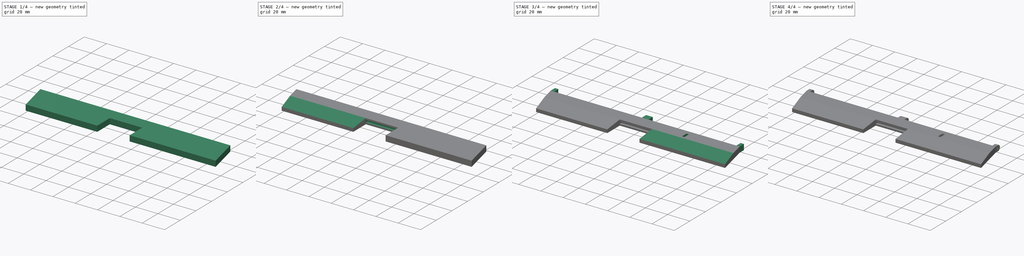
[diagram: build sequence overview — one tinted view per stage of 4, left to right]
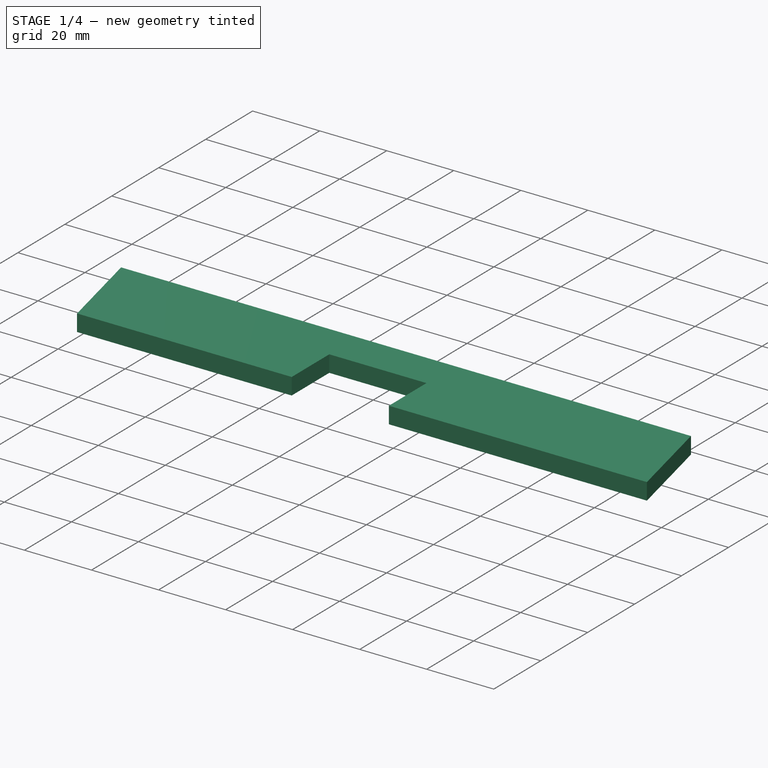
[diagram: stage 1 of 4 — iso view after this stage's code; geometry added in this stage tinted green]
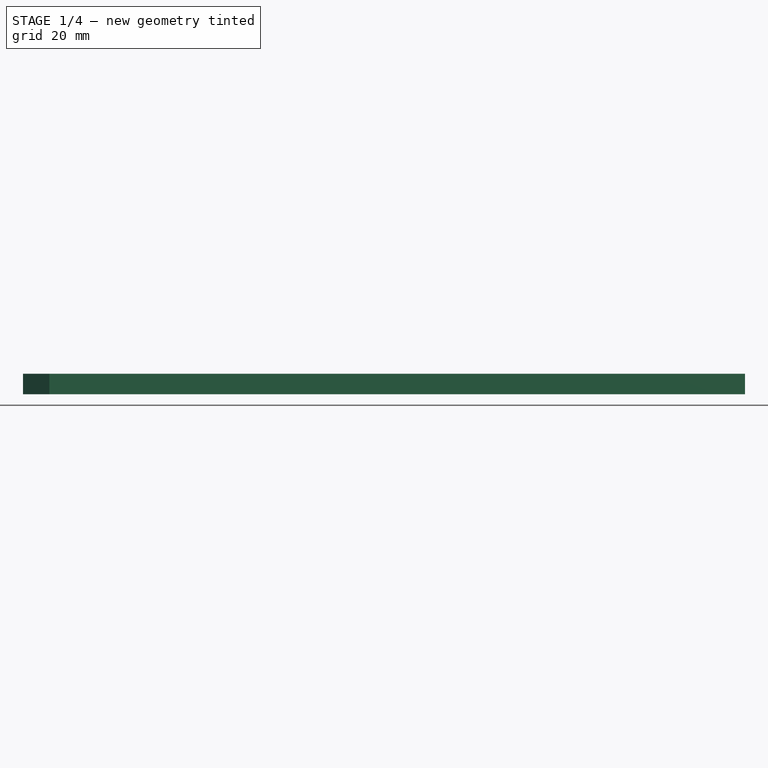
[diagram: stage 1 of 4 — front view after this stage's code; geometry added in this stage tinted green]
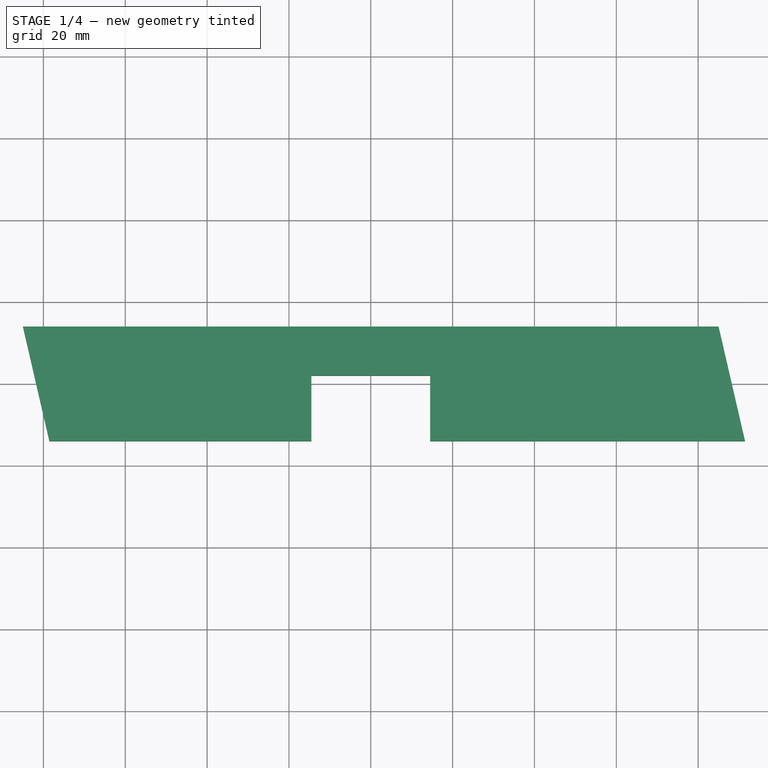
[diagram: stage 1 of 4 — top view after this stage's code; geometry added in this stage tinted green]
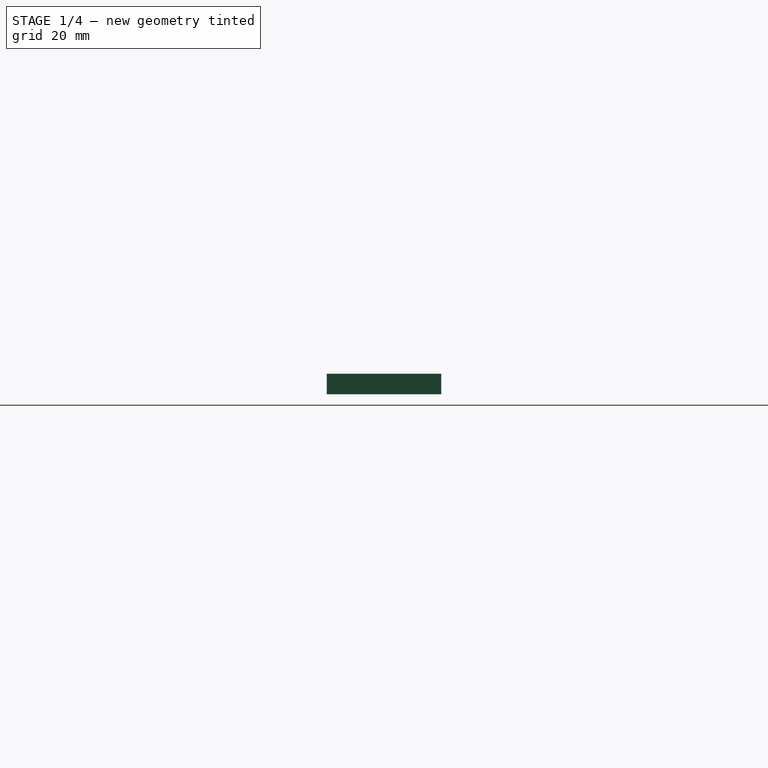
[diagram: stage 1 of 4 — right view after this stage's code; geometry added in this stage tinted green]
FCSTD DOCUMENT  (FreeCAD 0.19R)
Label: aileron_left_part
License: All rights reserved
LicenseURL: http://en.wikipedia.org/wiki/All_rights_reserved
objects: Sketcher::SketchObject×8, PartDesign::Pocket×6, PartDesign::CoordinateSystem×3, App::DocumentObjectGroup×2, PartDesign::Pad×2, App::FeaturePython×1, PartDesign::Fillet×1, PartDesign::Body×1, App::Part×1
note: 30 computed .brp shape members not serialized (recipe doc carries the construction recipe); baked Part::Feature solids carry a one-line shape summary decoded from their .brp

FEATURE [App::DocumentObjectGroup] Parts
FEATURE [PartDesign::CoordinateSystem] LCS_Origin
  AttacherType = Attacher::AttachEngine3D
  MapMode = 2
  Support = -> [X_Axis]
FEATURE [App::DocumentObjectGroup] Constraints
FEATURE [App::FeaturePython] Variables  # WARN: FeaturePython — macro-defined, semantics opaque (R4)
FEATURE [PartDesign::CoordinateSystem] LCS_0
  AttacherType = Attacher::AttachEngine3D
  MapMode = 2
  Support = -> [X_Axis001]
FEATURE [Sketcher::SketchObject] Sketch
  FullyConstrained = false
  MapMode = 5
  Support = -> [XY_Plane001]
  sketch-geometry (5):
    g0: LineSegment StartX=-85 StartY=14 StartZ=0 EndX=85 EndY=14 EndZ=0
    g1: LineSegment StartX=85 StartY=14 StartZ=0 EndX=91.4643 EndY=-14 EndZ=0
    g2: LineSegment StartX=91.4643 StartY=-14 StartZ=0 EndX=-78.5357 EndY=-14 EndZ=0
    g3: LineSegment StartX=-78.5357 StartY=-14 StartZ=0 EndX=-85 EndY=14 EndZ=0
    g4: LineSegment StartX=-45.9438 StartY=14 StartZ=0 EndX=-45.9438 EndY=-14 EndZ=0
  constraints (13):
    c: Coincident(g0,g1)
    c: Coincident(g1,g2)
    c: Coincident(g2,g3)
    c: Coincident(g3,g0)
    c: Horizontal(g2)
    c: DistanceX(g0,g0) = 170
    c: Angle(g3,g0) = 1.3439
    c: Angle(g1,g2) = 1.3439
    c: PointOnObject(g4,g0)
    c: PointOnObject(g4,g2)
    c: DistanceY(g4,g4) = 28
    c: Symmetric(g4,g4,g-1)
    c: Symmetric(g0,g0,g-2)
FEATURE [PartDesign::Pad] Pad
  Direction = (1,1,1)
  Length = 5
  Length2 = 100
  Profile = -> Sketch
  Type = 0
FEATURE [Sketcher::SketchObject] Sketch001
  FullyConstrained = true
  MapMode = 5
  Placement = pos=(0,0,5) rot=(0,0,1;0rad)
  Support = -> [Pad]
  sketch-geometry (4):
    g0: LineSegment StartX=-14.5 StartY=2 StartZ=0 EndX=14.5 EndY=2 EndZ=0
    g1: LineSegment StartX=14.5 StartY=2 StartZ=0 EndX=14.5 EndY=-14 EndZ=0
    g2: LineSegment StartX=14.5 StartY=-14 StartZ=0 EndX=-14.5 EndY=-14 EndZ=0
    g3: LineSegment StartX=-14.5 StartY=-14 StartZ=0 EndX=-14.5 EndY=2 EndZ=0
  constraints (11):
    c: Coincident(g0,g1)
    c: Coincident(g1,g2)
    c: Coincident(g2,g3)
    c: Coincident(g3,g0)
    c: Horizontal(g2)
    c: Vertical(g1)
    c: Vertical(g3)
    c: DistanceY(g1,g1) = 16
    c: DistanceX(g2,g2) = 29
    c: DistanceY(g-1,g0) = 2
    c: Symmetric(g0,g0,g-2)
FEATURE [PartDesign::Pocket] Pocket
  BaseFeature = -> Pad
  Length = 5
  Length2 = 100
  Profile = -> Sketch001
  Type = 0
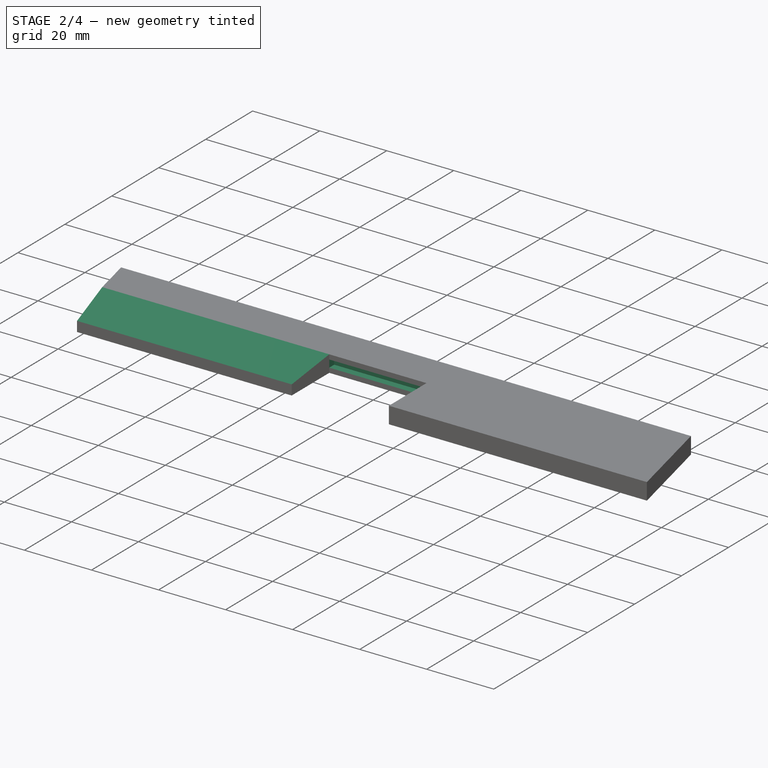
[diagram: stage 2 of 4 — iso view after this stage's code; geometry added in this stage tinted green]
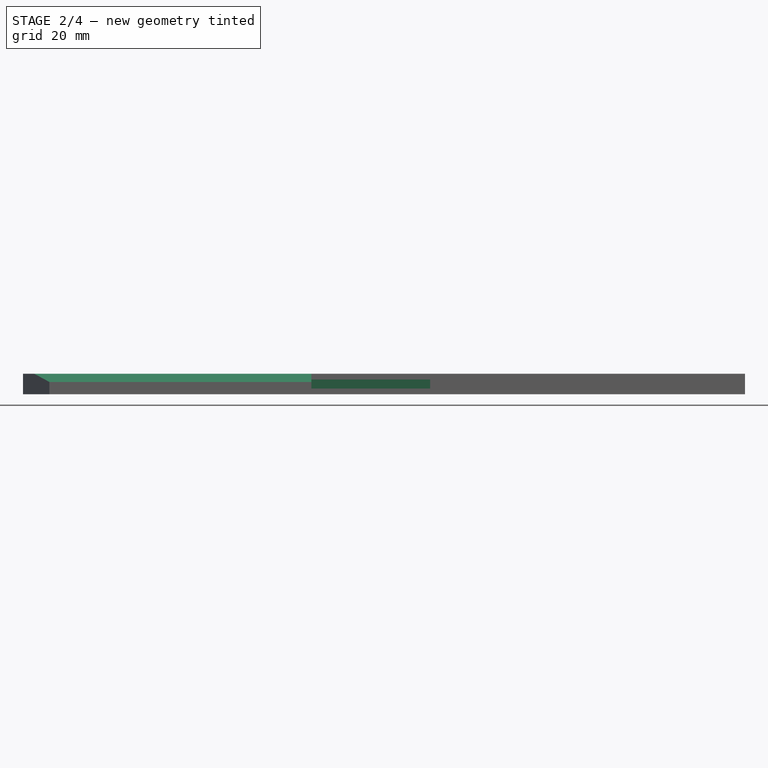
[diagram: stage 2 of 4 — front view after this stage's code; geometry added in this stage tinted green]
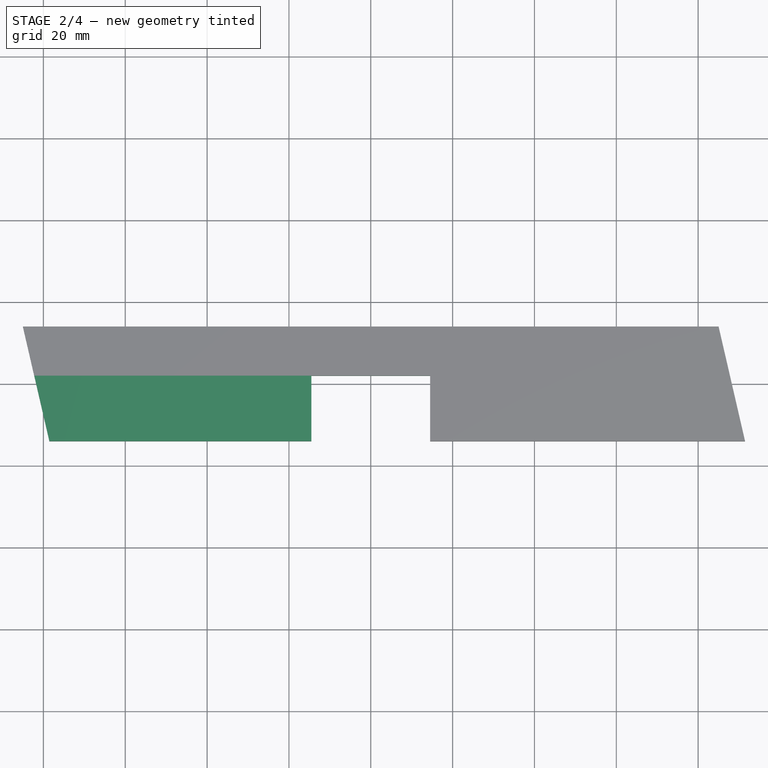
[diagram: stage 2 of 4 — top view after this stage's code; geometry added in this stage tinted green]
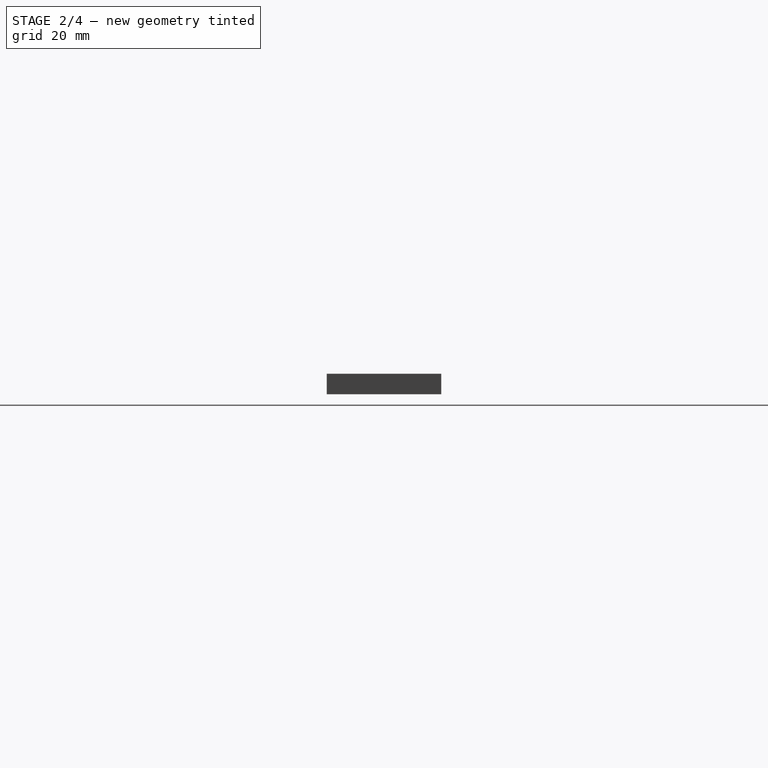
[diagram: stage 2 of 4 — right view after this stage's code; geometry added in this stage tinted green]
FEATURE [Sketcher::SketchObject] Sketch002
  FullyConstrained = true
  MapMode = 5
  Placement = pos=(0,2,0) rot=(1,0,0;1.5708rad)
  Support = -> [Pocket]
  sketch-geometry (4):
    g0: LineSegment StartX=-14.5 StartY=3.6 StartZ=0 EndX=14.5 EndY=3.6 EndZ=0
    g1: LineSegment StartX=14.5 StartY=3.6 StartZ=0 EndX=14.5 EndY=1.4 EndZ=0
    g2: LineSegment StartX=14.5 StartY=1.4 StartZ=0 EndX=-14.5 EndY=1.4 EndZ=0
    g3: LineSegment StartX=-14.5 StartY=1.4 StartZ=0 EndX=-14.5 EndY=3.6 EndZ=0
  constraints (11):
    c: Coincident(g0,g1)
    c: Coincident(g1,g2)
    c: Coincident(g2,g3)
    c: Coincident(g3,g0)
    c: Horizontal(g2)
    c: Vertical(g1)
    c: Vertical(g3)
    c: DistanceX(g0,g0) = 29
    c: DistanceY(g1,g1) = 2.2
    c: Symmetric(g0,g0,g-2)
    c: DistanceY(g-1,g1) = 1.4
FEATURE [PartDesign::Pocket] Pocket001
  BaseFeature = -> Pocket
  Length = 2.1
  Length2 = 100
  Profile = -> Sketch002
  Type = 0
FEATURE [Sketcher::SketchObject] Sketch004
  FullyConstrained = false
  MapMode = 5
  Placement = pos=(-14.5,0,0) rot=(0.57735,0.57735,0.57735;2.0944rad)
  Support = -> [Pocket001]
  sketch-geometry (3):
    g0: LineSegment StartX=-14 StartY=5 StartZ=0 EndX=2 EndY=5 EndZ=0
    g1: LineSegment StartX=2 StartY=5 StartZ=0 EndX=-14 EndY=3 EndZ=0
    g2: LineSegment StartX=-14 StartY=3 StartZ=0 EndX=-14 EndY=5 EndZ=0
  constraints (7):
    c: Coincident(g1,g2)
    c: Horizontal(g0)
    c: Vertical(g2)
    c: DistanceX(g0,g0) = 16
    c: DistanceY(g2,g2) = 2
    c: DistanceX(g-2,g1) = -14
    c: DistanceY(g-1,g0) = 5
FEATURE [PartDesign::Pocket] Pocket002
  BaseFeature = -> Pocket001
  Length = 100
  Length2 = 100
  Profile = -> Sketch004
  Type = 0
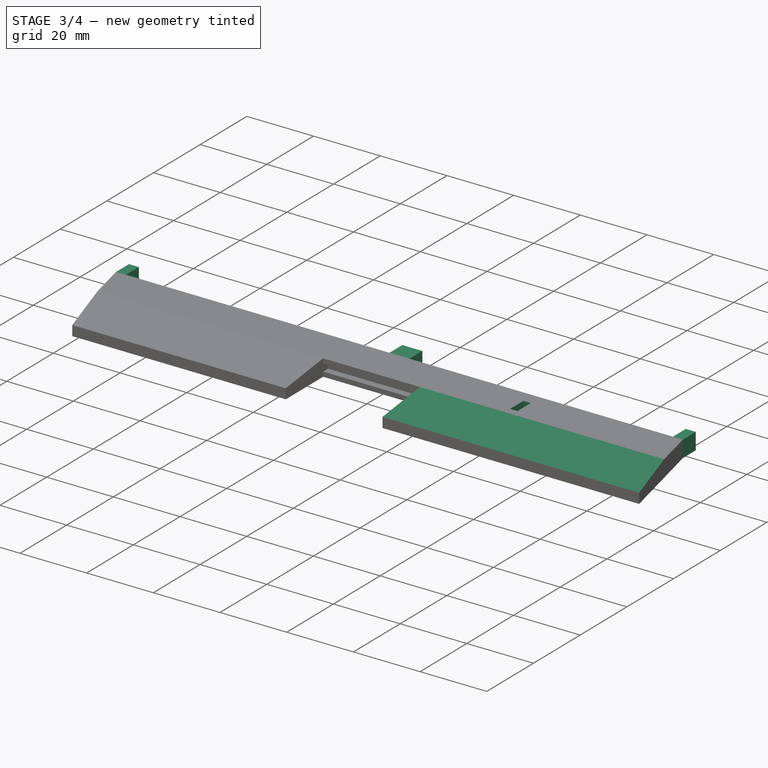
[diagram: stage 3 of 4 — iso view after this stage's code; geometry added in this stage tinted green]
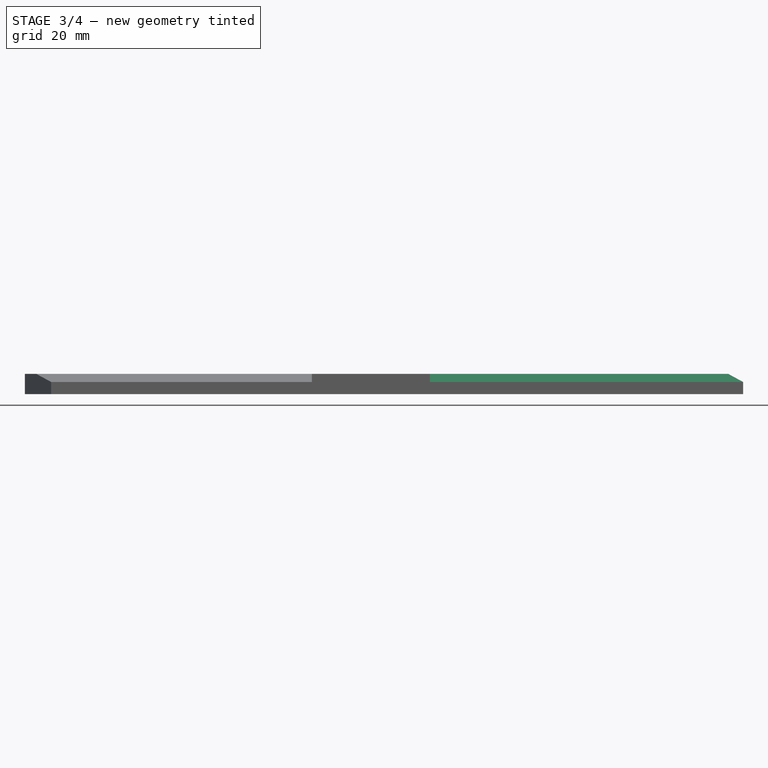
[diagram: stage 3 of 4 — front view after this stage's code; geometry added in this stage tinted green]
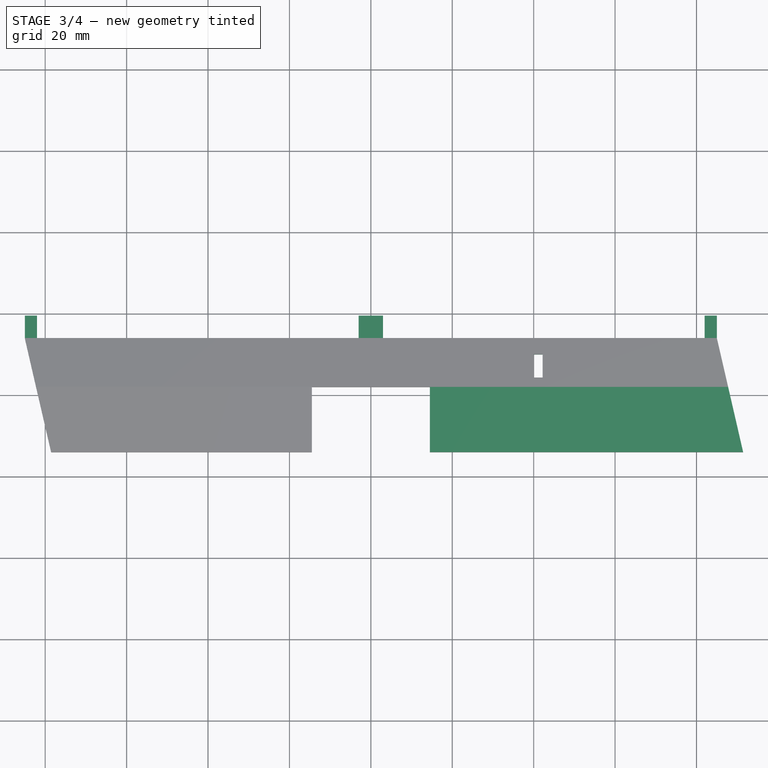
[diagram: stage 3 of 4 — top view after this stage's code; geometry added in this stage tinted green]
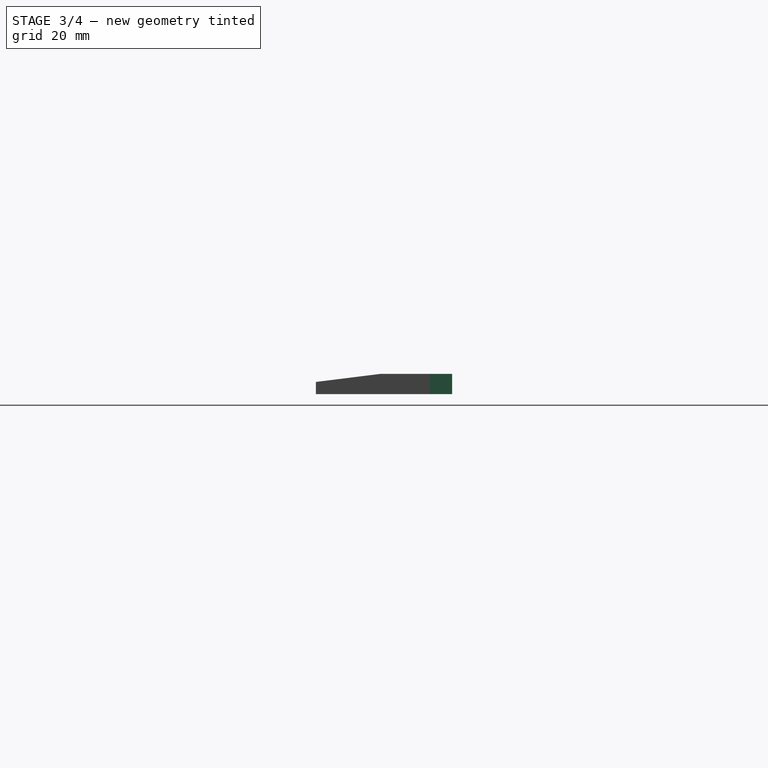
[diagram: stage 3 of 4 — right view after this stage's code; geometry added in this stage tinted green]
FEATURE [Sketcher::SketchObject] Sketch005
  FullyConstrained = true
  MapMode = 5
  Placement = pos=(14.5,0,0) rot=(0.57735,-0.57735,-0.57735;2.0944rad)
  Support = -> [Pocket002]
  sketch-geometry (3):
    g0: LineSegment StartX=-2 StartY=5 StartZ=0 EndX=14 EndY=5 EndZ=0
    g1: LineSegment StartX=14 StartY=5 StartZ=0 EndX=14 EndY=3 EndZ=0
    g2: LineSegment StartX=14 StartY=3 StartZ=0 EndX=-2 EndY=5 EndZ=0
  constraints (9):
    c: Coincident(g0,g1)
    c: Coincident(g1,g2)
    c: Horizontal(g0)
    c: Vertical(g1)
    c: Coincident(g2,g0)
    c: DistanceX(g0,g0) = 16
    c: DistanceY(g1,g1) = 2
    c: DistanceX(g-2,g0) = 14
    c: DistanceY(g-1,g0) = 5
FEATURE [PartDesign::Pocket] Pocket003
  BaseFeature = -> Pocket002
  Length = 100
  Length2 = 100
  Profile = -> Sketch005
  Type = 0
FEATURE [Sketcher::SketchObject] Sketch006
  FullyConstrained = true
  MapMode = 5
  Placement = pos=(-1e-16,14,0) rot=(0,0.707107,0.707107;3.14159rad)
  Support = -> [Pocket003]
  sketch-geometry (12):
    g0: LineSegment StartX=82 StartY=5 StartZ=0 EndX=85 EndY=5 EndZ=0
    g1: LineSegment StartX=85 StartY=5 StartZ=0 EndX=85 EndY=0 EndZ=0
    g2: LineSegment StartX=85 StartY=0 StartZ=0 EndX=82 EndY=0 EndZ=0
    g3: LineSegment StartX=82 StartY=0 StartZ=0 EndX=82 EndY=5 EndZ=0
    g4: LineSegment StartX=-85 StartY=5 StartZ=0 EndX=-82 EndY=5 EndZ=0
    g5: LineSegment StartX=-82 StartY=5 StartZ=0 EndX=-82 EndY=0 EndZ=0
    g6: LineSegment StartX=-82 StartY=0 StartZ=0 EndX=-85 EndY=0 EndZ=0
    g7: LineSegment StartX=-85 StartY=0 StartZ=0 EndX=-85 EndY=5 EndZ=0
    g8: LineSegment StartX=-3 StartY=5 StartZ=0 EndX=3 EndY=5 EndZ=0
    g9: LineSegment StartX=3 StartY=5 StartZ=0 EndX=3 EndY=0 EndZ=0
    g10: LineSegment StartX=3 StartY=0 StartZ=0 EndX=-3 EndY=0 EndZ=0
    g11: LineSegment StartX=-3 StartY=0 StartZ=0 EndX=-3 EndY=5 EndZ=0
  constraints (35):
    c: Coincident(g0,g1)
    c: Coincident(g1,g2)
    c: Coincident(g2,g3)
    c: Coincident(g3,g0)
    c: Horizontal(g0)
    c: Horizontal(g2)
    c: Vertical(g1)
    c: Vertical(g3)
    c: DistanceY(g1,g1) = 5
    c: DistanceX(g2,g2) = 3
    c: PointOnObject(g1,g-1)
    c: DistanceX(g-1,g0) = 85
    c: Coincident(g4,g5)
    c: Coincident(g5,g6)
    c: Coincident(g6,g7)
    c: Coincident(g7,g4)
    c: Horizontal(g4)
    c: Horizontal(g6)
    c: Vertical(g5)
    c: Vertical(g7)
    c: DistanceX(g4,g4) = 3
    c: DistanceY(g5,g5) = 5
    c: PointOnObject(g6,g-1)
    c: DistanceX(g-2,g4) = -85
    c: Coincident(g8,g9)
    c: Coincident(g9,g10)
    c: Coincident(g10,g11)
    c: Coincident(g11,g8)
    c: Horizontal(g10)
    c: Vertical(g9)
    c: Vertical(g11)
    c: DistanceY(g9,g9) = 5
    c: DistanceX(g10,g10) = 6
    c: PointOnObject(g9,g-1)
    c: Symmetric(g8,g8,g-2)
FEATURE [PartDesign::Pad] Pad001
  BaseFeature = -> Pocket003
  Direction = (1,1,1)
  Length = 5.5
  Length2 = 100
  Profile = -> Sketch006
  Type = 0
FEATURE [Sketcher::SketchObject] Sketch008
  FullyConstrained = true
  MapMode = 5
  Placement = pos=(0,0,5) rot=(0,0,1;0rad)
  Support = -> [Pocket001]
  sketch-geometry (4):
    g0: LineSegment StartX=40 StartY=10 StartZ=0 EndX=42.2 EndY=10 EndZ=0
    g1: LineSegment StartX=42.2 StartY=10 StartZ=0 EndX=42.2 EndY=4.3 EndZ=0
    g2: LineSegment StartX=42.2 StartY=4.3 StartZ=0 EndX=40 EndY=4.3 EndZ=0
    g3: LineSegment StartX=40 StartY=4.3 StartZ=0 EndX=40 EndY=10 EndZ=0
  constraints (12):
    c: Coincident(g0,g1)
    c: Coincident(g1,g2)
    c: Coincident(g2,g3)
    c: Coincident(g3,g0)
    c: Horizontal(g0)
    c: Horizontal(g2)
    c: Vertical(g1)
    c: Vertical(g3)
    c: DistanceY(g3,g3) = 5.7
    c: DistanceX(g2,g2) = 2.2
    c: DistanceX(g-2,g2) = 40
    c: DistanceY(g-1,g0) = 10
FEATURE [PartDesign::Pocket] Pocket005
  BaseFeature = -> Pad001
  Length = 5
  Length2 = 100
  Profile = -> Sketch008
  Type = 0
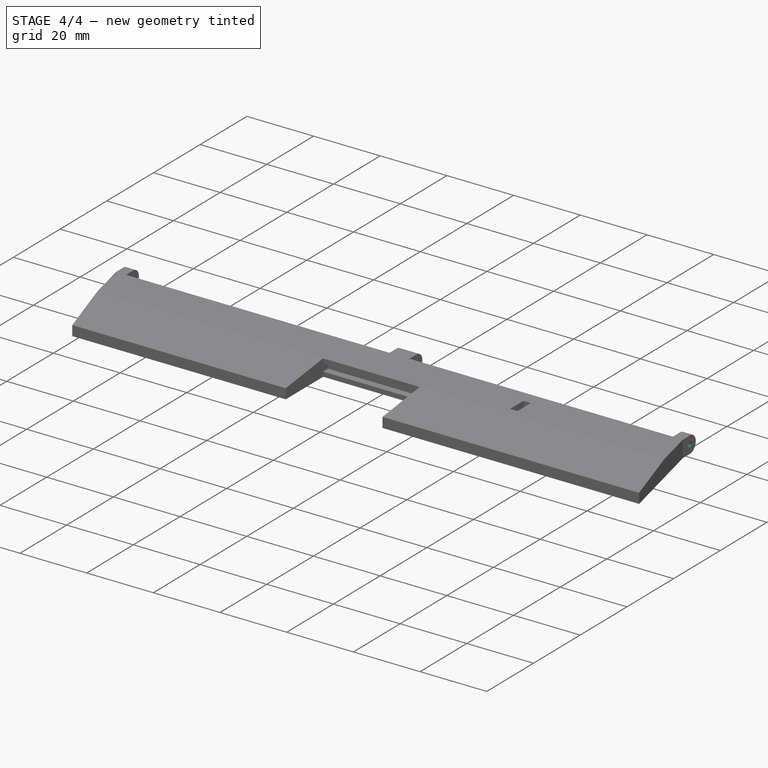
[diagram: stage 4 of 4 — iso view after this stage's code; geometry added in this stage tinted green]
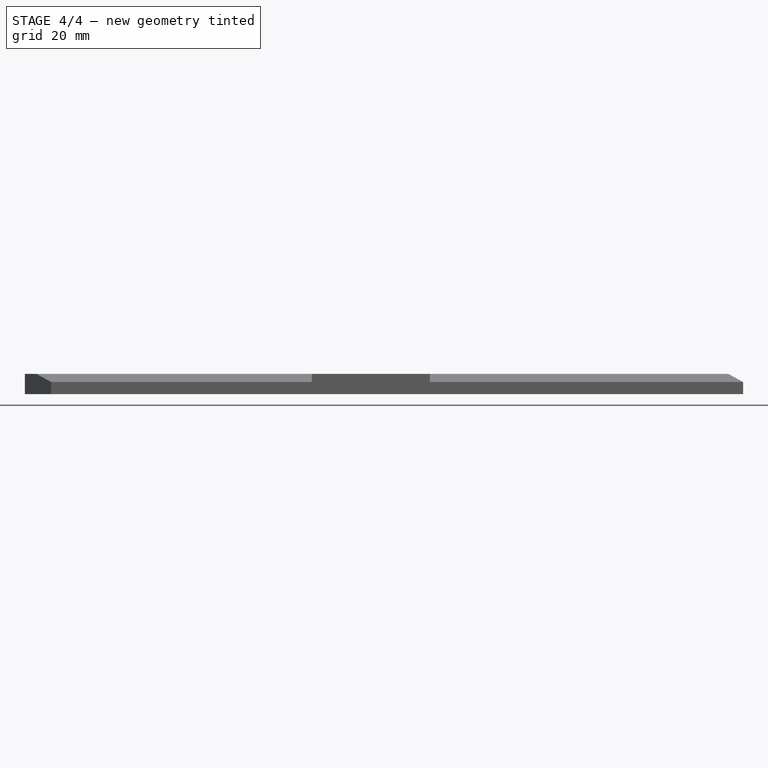
[diagram: stage 4 of 4 — front view after this stage's code; geometry added in this stage tinted green]
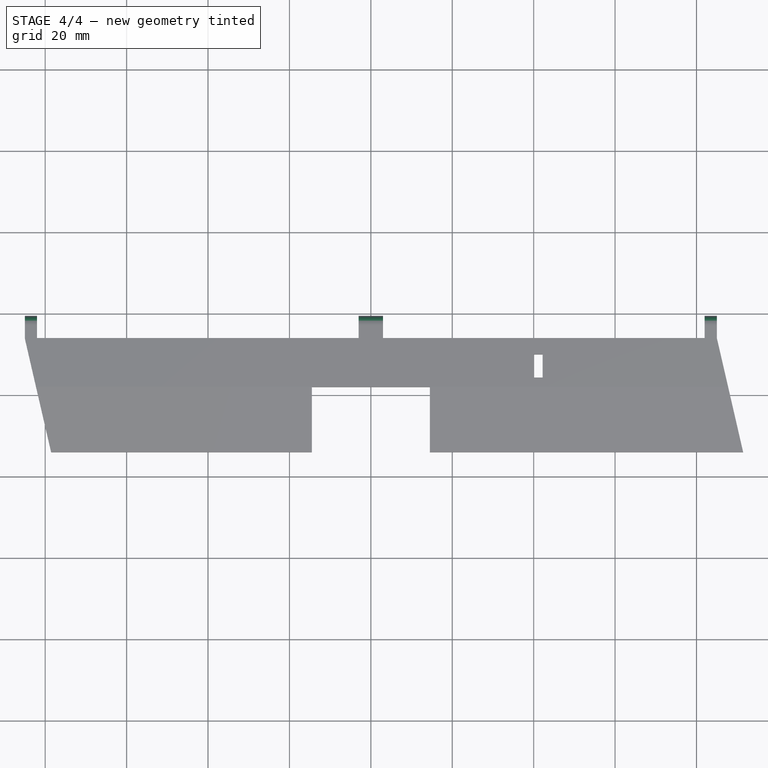
[diagram: stage 4 of 4 — top view after this stage's code; geometry added in this stage tinted green]
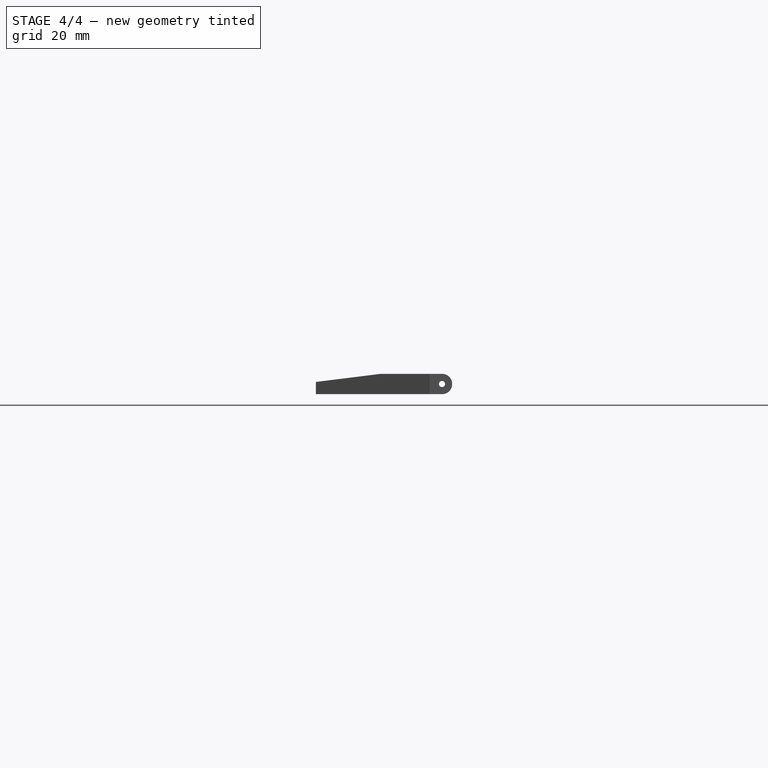
[diagram: stage 4 of 4 — right view after this stage's code; geometry added in this stage tinted green]
FEATURE [PartDesign::CoordinateSystem] LCS_1
  AttacherType = Attacher::AttachEngine3D
  MapMode = 7
  Placement = pos=(-14.5,4.1,1.4) rot=(0,1,0;3.14159rad)
  Support = -> [Pocket001]
FEATURE [Sketcher::SketchObject] Sketch009
  FullyConstrained = false
  MapMode = 5
  Placement = pos=(85,9e-16,0) rot=(0.57735,0.57735,0.57735;2.0944rad)
  Support = -> [Pocket005]
  sketch-geometry (3):
    g0: LineSegment StartX=17 StartY=13.0753 StartZ=0 EndX=17 EndY=-10.1705 EndZ=0
    g1: LineSegment StartX=-21.6834 StartY=2.5 StartZ=0 EndX=32.6819 EndY=2.5 EndZ=0
    g2: Circle CenterX=17 CenterY=2.5 CenterZ=0 NormalX=0 NormalY=0 NormalZ=1 AngleXU=0 Radius=0.75
  constraints (7):
    c: Vertical(g0)
    c: DistanceX(g-2,g0) = 17
    c: Horizontal(g1)
    c: DistanceY(g-1,g1) = 2.5
    c: PointOnObject(g2,g0)
    c: Diameter(g2) = 1.5
    c: PointOnObject(g2,g1)
FEATURE [PartDesign::Pocket] Pocket006
  BaseFeature = -> Pocket005
  Length = 200
  Length2 = 100
  Profile = -> Sketch009
  Type = 0
FEATURE [PartDesign::Fillet] Fillet
  Base = -> Pocket006 [Edge66,Edge83,Edge55,Edge74,Edge47,Edge80]
  BaseFeature = -> Pocket006
  Radius = 2.49
  SupportTransform = false
FEATURE [PartDesign::Body] Body
  Group = -> [LCS_0,Sketch,Pad,Sketch001,Pocket,Sketch002,Pocket001,Sketch004,Pocket002,Sketch005,Pocket003,Sketch006,Pad001,Sketch008,Pocket005,Sketch009,Pocket006,Fillet]
  Origin = -> Origin001
  Tip = -> Fillet
FEATURE [App::Part] Model
  Configuration = 0
  Group = -> [LCS_Origin,Constraints,Variables,Body,LCS_1]
  Origin = -> Origin
  Type = Assembly4 Model
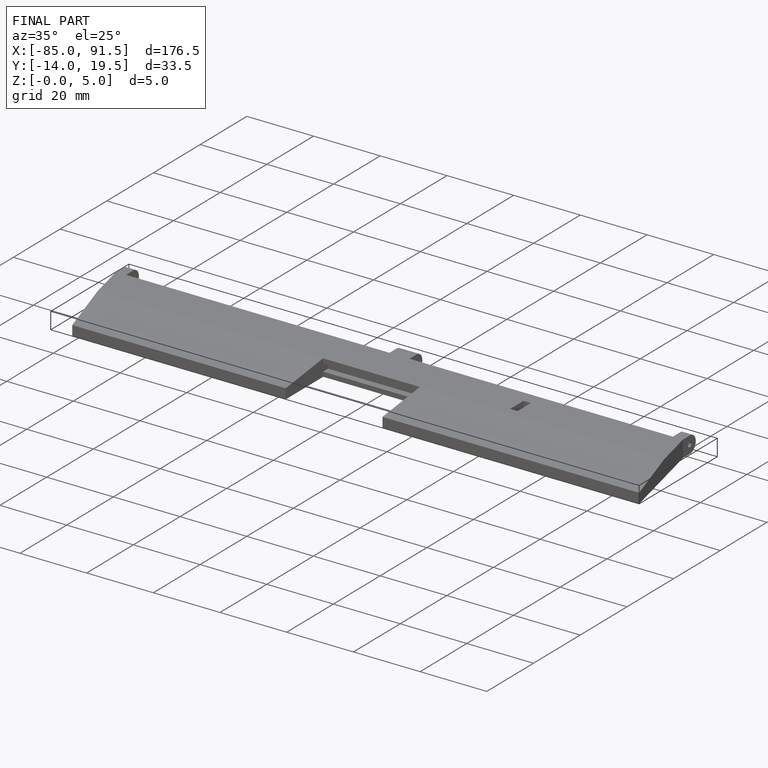
[diagram: finished part — iso view with bounding-box wireframe]
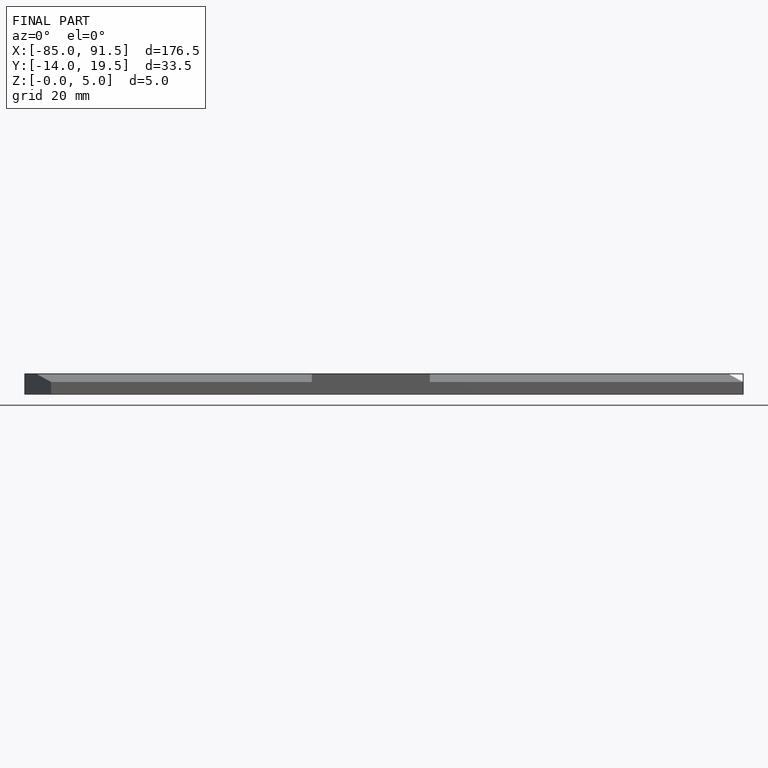
[diagram: finished part — front view with bounding-box wireframe]
